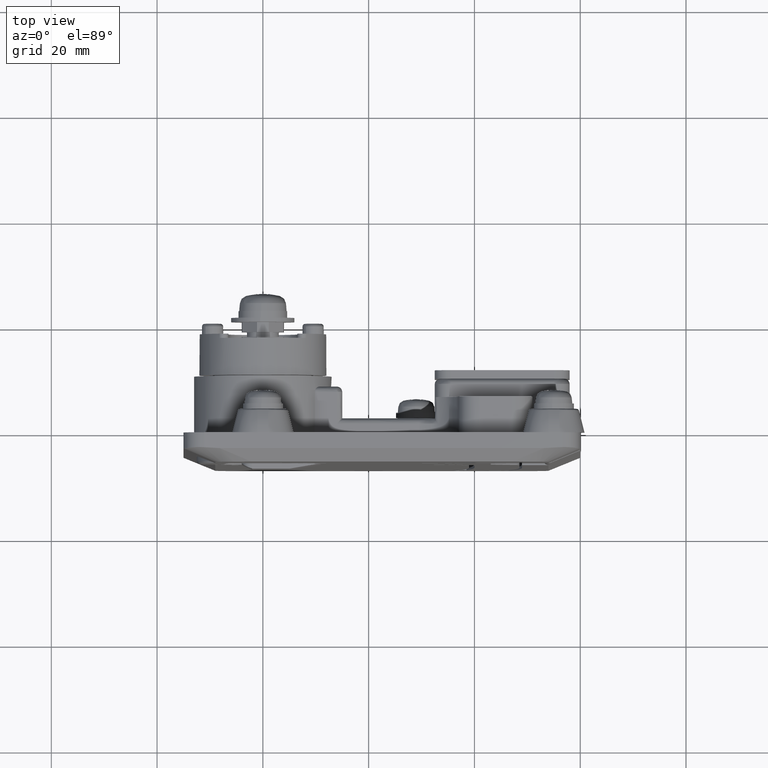
[diagram: clean part render]
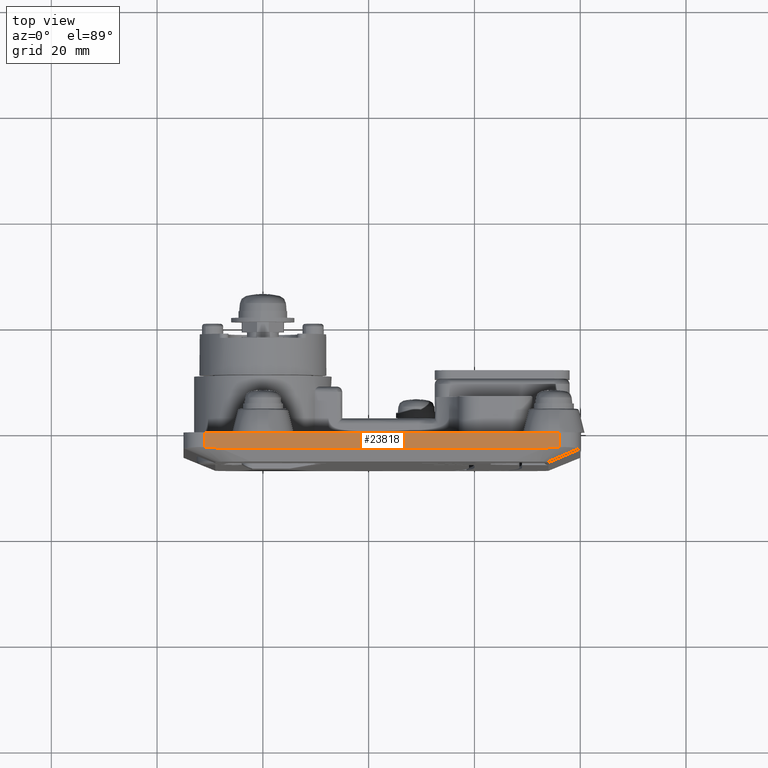
[diagram: same view with one face highlighted and labeled with its STEP entity id]
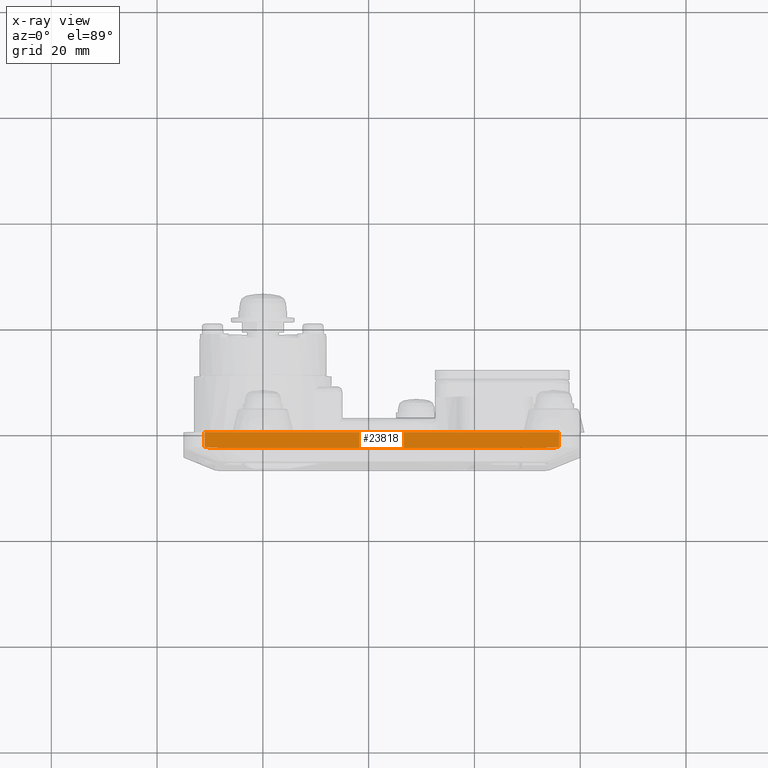
[diagram: x-ray of the same camera — body ghosted, the highlighted face saturated]
A machine part, top view. The second image highlights one B-rep face of the part: STEP entity #23818.
The next image is the same camera in x-ray: the body ghosted, the highlighted face saturated — about 0% of this face is hidden behind the body in this view.
In plain terms, the highlighted face is a freeform B-spline surface patch.
Its self-contained STEP definition (entity closure, byte-faithful):
#23293=CARTESIAN_POINT('',(55.999445687218902,-24.147189713885851,30.0));
#23294=VERTEX_POINT('',#23293);
#23326=CARTESIAN_POINT('',(53.193025326522203,-24.300000000000001,30.0));
#23327=VERTEX_POINT('',#23326);
#23328=CARTESIAN_POINT('',(53.193025326522132,-24.300000000000029,30.0));
#23329=CARTESIAN_POINT('',(54.529801069910967,-24.300000000000033,30.000000000000004));
#23330=CARTESIAN_POINT('',(55.999445687218881,-24.147189713885830,30.0));
#23338=(BOUNDED_CURVE()B_SPLINE_CURVE(2,(#23328,#23329,#23330),.UNSPECIFIED.,.F.,.U.)CURVE()GEOMETRIC_REPRESENTATION_ITEM()QUASI_UNIFORM_CURVE()RATIONAL_B_SPLINE_CURVE((1.0,0.996733773840713,1.0))REPRESENTATION_ITEM(''));
#23339=EDGE_CURVE('',#23327,#23294,#23338,.T.);
#23380=CARTESIAN_POINT('',(-8.194133952084460,-24.300000000000001,30.0));
#23381=VERTEX_POINT('',#23380);
#23387=CARTESIAN_POINT('',(-11.000554312781160,-24.147189713885851,30.0));
#23388=VERTEX_POINT('',#23387);
#23389=CARTESIAN_POINT('',(-11.000554312781160,-24.147189713885851,30.0));
#23390=CARTESIAN_POINT('',(-9.530909695473635,-24.299999999999883,30.000000000000007));
#23391=CARTESIAN_POINT('',(-8.194133952084460,-24.300000000000001,30.0));
#23399=(BOUNDED_CURVE()B_SPLINE_CURVE(2,(#23389,#23390,#23391),.UNSPECIFIED.,.F.,.U.)CURVE()GEOMETRIC_REPRESENTATION_ITEM()QUASI_UNIFORM_CURVE()RATIONAL_B_SPLINE_CURVE((1.0,0.996733773840727,1.0))REPRESENTATION_ITEM(''));
#23400=EDGE_CURVE('',#23388,#23381,#23399,.T.);
#23588=CARTESIAN_POINT('',(53.193025326522203,-24.300000000000001,30.0));
#23589=CARTESIAN_POINT('',(-8.194133952084460,-24.300000000000001,30.0));
#23590=QUASI_UNIFORM_CURVE('',1,(#23588,#23589),.UNSPECIFIED.,.F.,.U.);
#23591=EDGE_CURVE('',#23327,#23381,#23590,.T.);
#23772=CARTESIAN_POINT('',(-11.000554312781160,-21.300000000000001,30.0));
#23773=VERTEX_POINT('',#23772);
#23774=CARTESIAN_POINT('',(-11.000554312781160,-21.300000000000001,30.0));
#23775=CARTESIAN_POINT('',(-11.000554312781160,-24.147189713885851,30.0));
#23776=QUASI_UNIFORM_CURVE('',1,(#23774,#23775),.UNSPECIFIED.,.F.,.U.);
#23777=EDGE_CURVE('',#23773,#23388,#23776,.T.);
#23795=CARTESIAN_POINT('',(-14.347204182922161,-24.449849237807840,30.0));
#23796=CARTESIAN_POINT('',(59.346097354439948,-24.449849237807840,30.0));
#23797=CARTESIAN_POINT('',(-14.347204182922161,-21.150149286977200,30.0));
#23798=CARTESIAN_POINT('',(59.346097354439948,-21.150149286977200,30.0));
#23799=B_SPLINE_SURFACE_WITH_KNOTS('',1,1,((#23795,#23797),(#23796,#23798)),.UNSPECIFIED.,.F.,.F.,.U.,(2,2),(2,2),(0.0,73.693301537362117),(0.0,3.299699950830640),.UNSPECIFIED.);
#23800=ORIENTED_EDGE('',*,*,#23591,.F.);
#23801=ORIENTED_EDGE('',*,*,#23339,.T.);
#23802=CARTESIAN_POINT('',(55.999445687218902,-21.300000000000001,30.0));
#23803=VERTEX_POINT('',#23802);
#23804=CARTESIAN_POINT('',(55.999445687218902,-21.300000000000001,30.0));
#23805=CARTESIAN_POINT('',(55.999445687218902,-24.147189713885851,30.0));
#23806=QUASI_UNIFORM_CURVE('',1,(#23804,#23805),.UNSPECIFIED.,.F.,.U.);
#23807=EDGE_CURVE('',#23803,#23294,#23806,.T.);
#23808=ORIENTED_EDGE('',*,*,#23807,.F.);
#23809=CARTESIAN_POINT('',(55.999445687218902,-21.300000000000001,30.0));
#23810=CARTESIAN_POINT('',(-11.000554312781160,-21.300000000000001,30.0));
#23811=QUASI_UNIFORM_CURVE('',1,(#23809,#23810),.UNSPECIFIED.,.F.,.U.);
#23812=EDGE_CURVE('',#23803,#23773,#23811,.T.);
#23813=ORIENTED_EDGE('',*,*,#23812,.T.);
#23814=ORIENTED_EDGE('',*,*,#23777,.T.);
#23815=ORIENTED_EDGE('',*,*,#23400,.T.);
#23816=EDGE_LOOP('',(#23800,#23801,#23808,#23813,#23814,#23815));
#23817=FACE_OUTER_BOUND('',#23816,.T.);
#23818=ADVANCED_FACE('',(#23817),#23799,.T.);